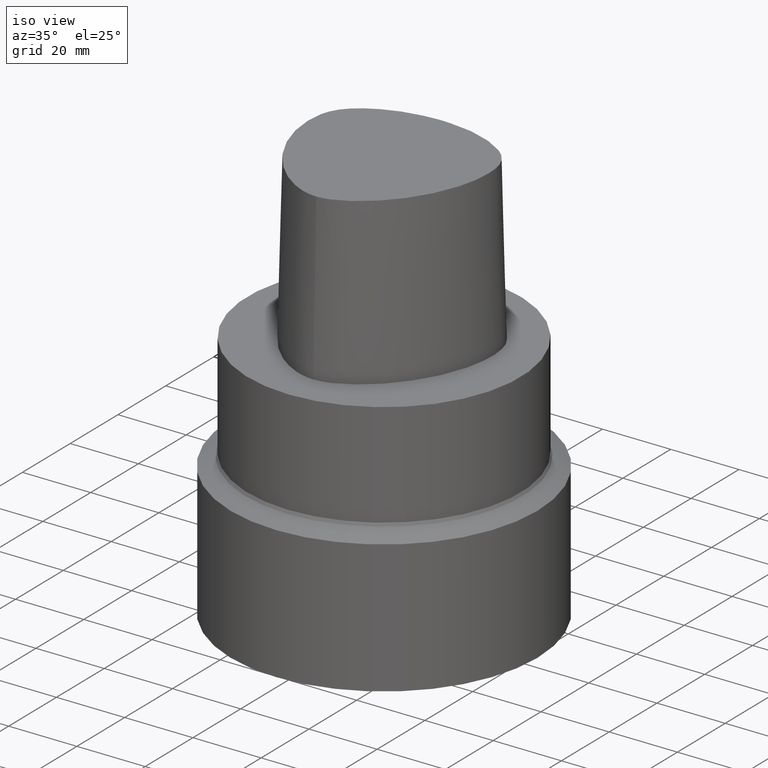
[diagram: clean part render]
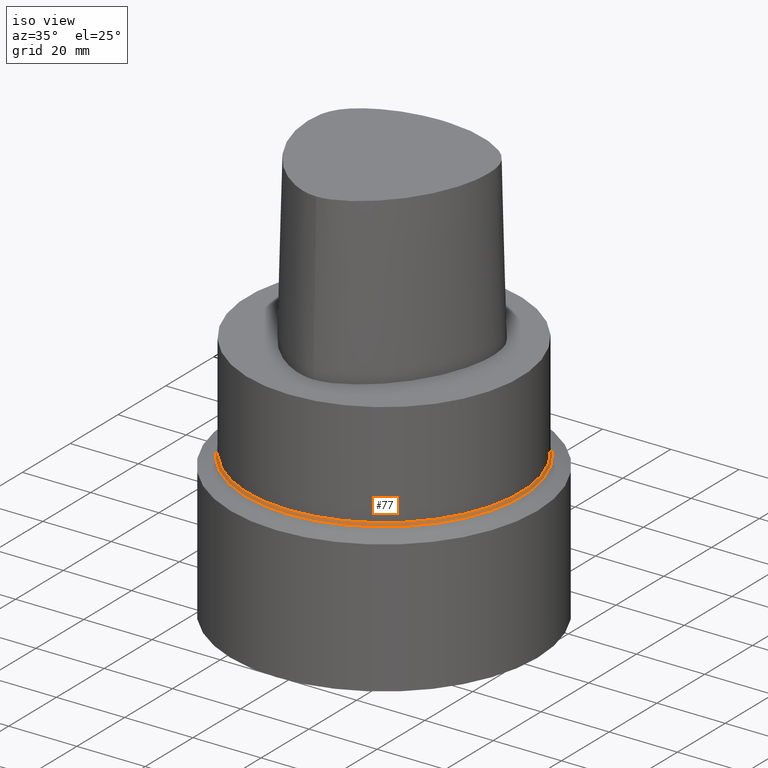
[diagram: same view with one face highlighted and labeled with its STEP entity id]
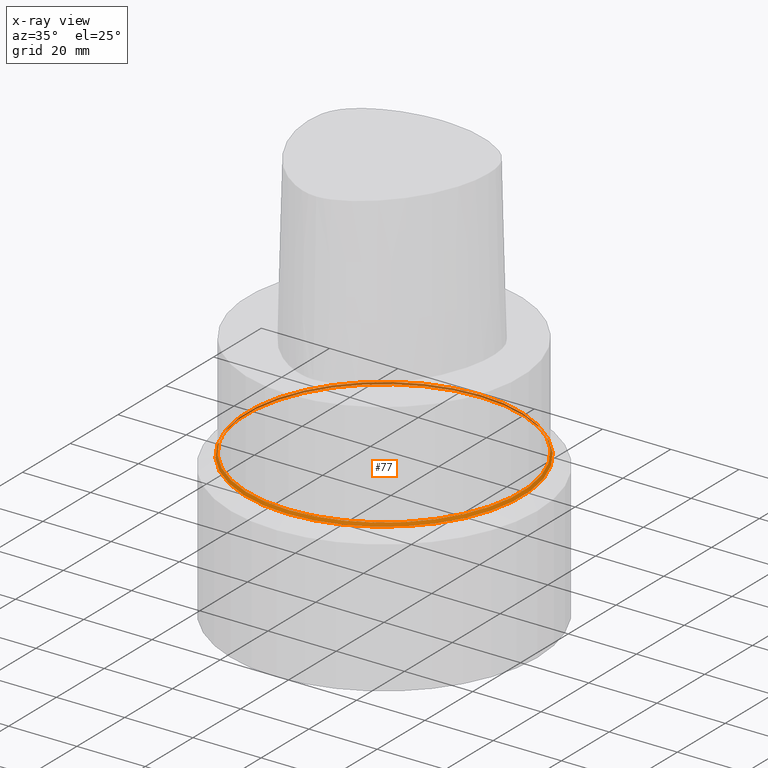
[diagram: x-ray of the same camera — body ghosted, the highlighted face saturated]
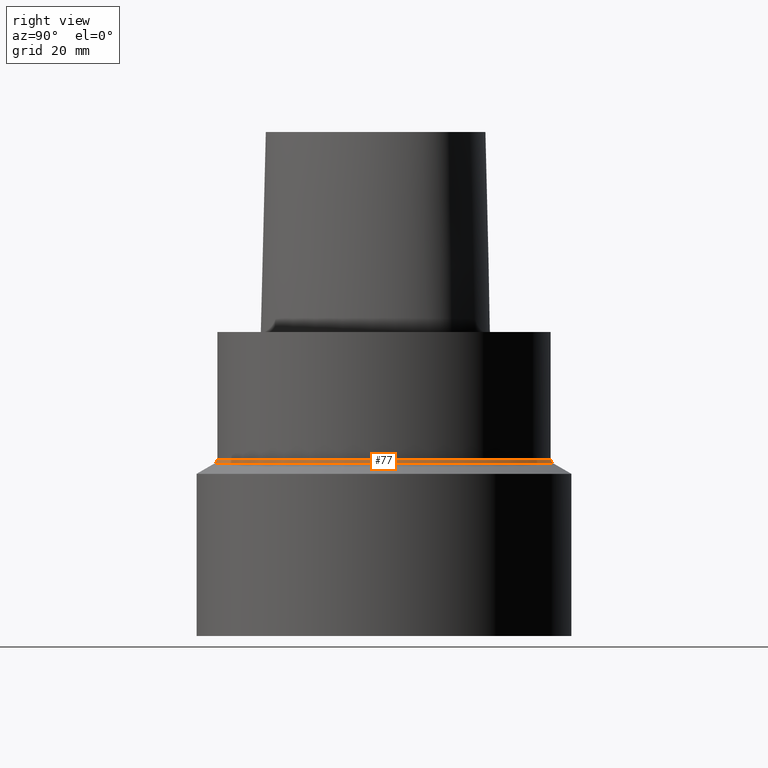
[diagram: same view with one face highlighted and labeled with its STEP entity id]
A machine part, iso view. The second image highlights one B-rep face of the part: STEP entity #77.
The next image is the same camera in x-ray: the body ghosted, the highlighted face saturated — about 30% of this face is hidden behind the body in this view.
A second angle (right view) of the same face is appended — the face is thin or edge-on in the first view.
In plain terms, the highlighted conical surface has half-angle 30 deg.
Its self-contained STEP definition (entity closure, byte-faithful):
#77=ADVANCED_FACE('',(#88,#89),#90,.T.);
#88=FACE_BOUND('',#492,.T.);
#89=FACE_BOUND('',#493,.T.);
#90=CONICAL_SURFACE('',#494,40.2425,0.523598777490518);
#492=EDGE_LOOP('',(#517));
#493=EDGE_LOOP('',(#518));
#494=AXIS2_PLACEMENT_3D('',#519,#520,#521);
#517=ORIENTED_EDGE('',*,*,#549,.F.);
#518=ORIENTED_EDGE('',*,*,#550,.T.);
#519=CARTESIAN_POINT('',(1.89997016386444E-015,3.79994032772888E-015,-31.02886751));
#520=DIRECTION('',(6.12323399573677E-017,1.22464679914735E-016,-1.0));
#521=DIRECTION('',(-1.23259516440783E-032,1.0,1.22464679914735E-016));
#549=EDGE_CURVE('',#559,#559,#560,.T.);
#550=EDGE_CURVE('',#561,#561,#562,.T.);
#559=VERTEX_POINT('',#720);
#560=CIRCLE('',#721,40.4925);
#561=VERTEX_POINT('',#722);
#562=CIRCLE('',#723,39.9925);
#720=CARTESIAN_POINT('',(1.9264845447167E-015,40.4925,-31.46188021));
#721=AXIS2_PLACEMENT_3D('',#730,#731,#732);
#722=CARTESIAN_POINT('',(1.87345578301218E-015,39.9925,-30.59585481));
#723=AXIS2_PLACEMENT_3D('',#733,#734,#735);
#730=CARTESIAN_POINT('',(1.9264845447167E-015,3.8529690894334E-015,-31.46188021));
#731=DIRECTION('',(6.12323399573677E-017,1.22464679914735E-016,-1.0));
#732=DIRECTION('',(-1.23259516440783E-032,1.0,1.22464679914735E-016));
#733=CARTESIAN_POINT('',(1.87345578301218E-015,3.74691156602436E-015,-30.59585481));
#734=DIRECTION('',(6.12323399573677E-017,1.22464679914735E-016,-1.0));
#735=DIRECTION('',(-1.23259516440783E-032,1.0,1.22464679914735E-016));